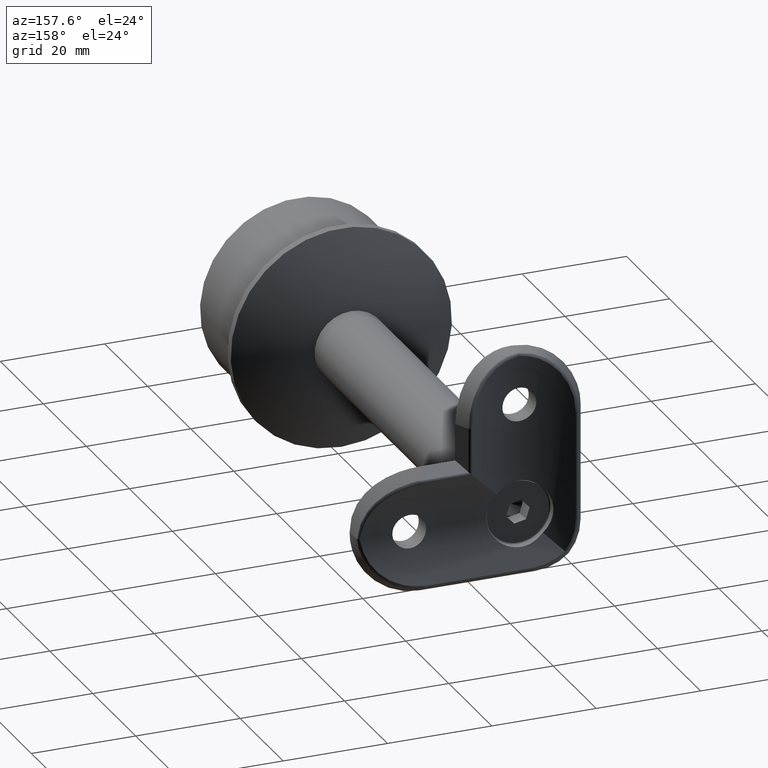
[diagram: clean part render]
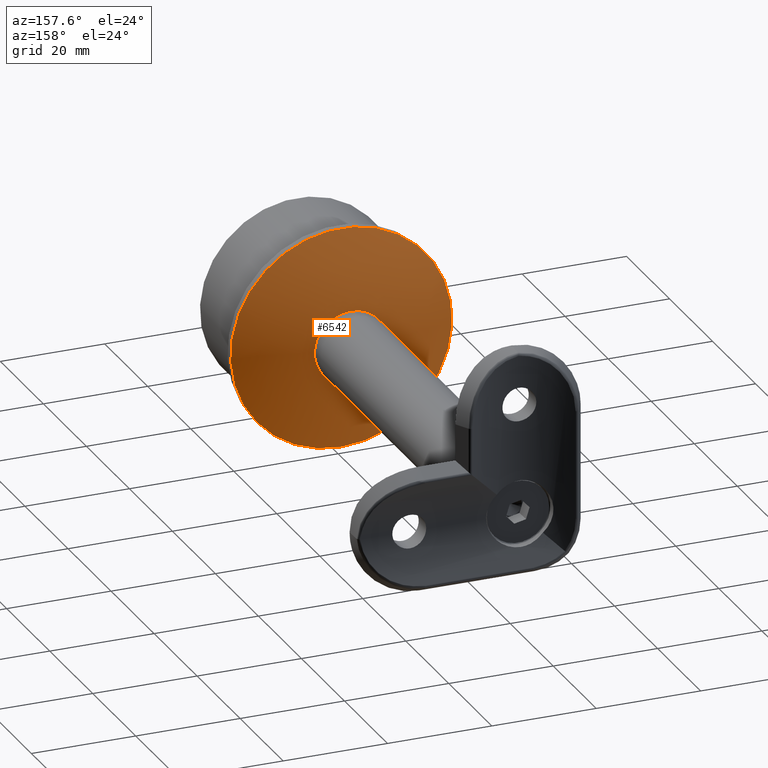
[diagram: same view with one face highlighted and labeled with its STEP entity id]
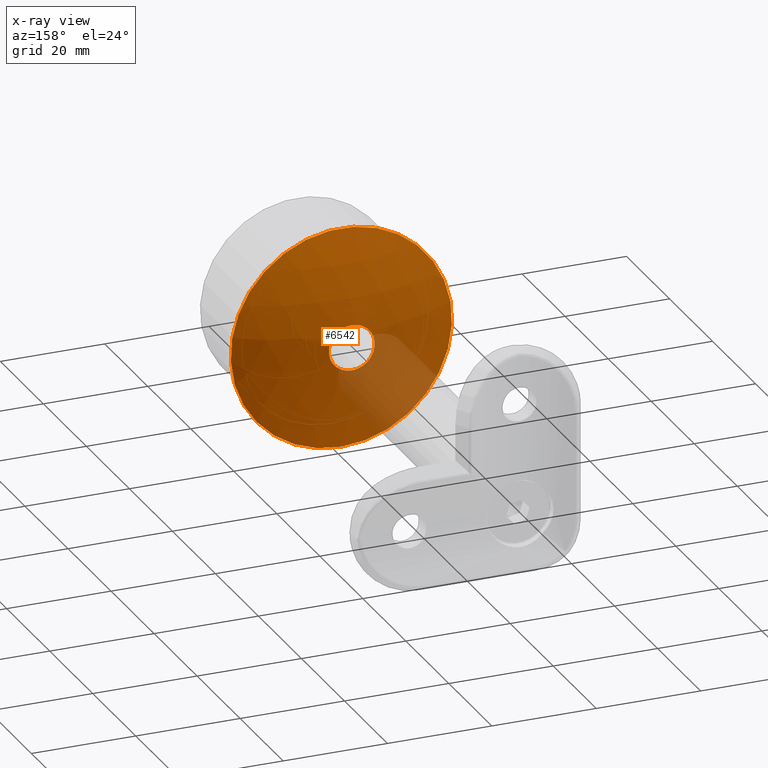
[diagram: x-ray of the same camera — body ghosted, the highlighted face saturated]
A machine part, auxiliary view. The second image highlights one B-rep face of the part: STEP entity #6542.
The next image is the same camera in x-ray: the body ghosted, the highlighted face saturated — about 15% of this face is hidden behind the body in this view.
In plain terms, the highlighted spherical surface has radius 47 mm.
Its self-contained STEP definition (entity closure, byte-faithful):
#669 = CARTESIAN_POINT ( 'NONE',  ( -7.703719777548943412E-31, 26.34777206188636356, -4.386234658904986539 ) ) ;
#1555 = DIRECTION ( 'NONE',  ( -0.000000000000000000, -1.000000000000000000, -0.000000000000000000 ) ) ;
#1572 = CARTESIAN_POINT ( 'NONE',  ( -7.703719777548943412E-31, -20.44710955477146186, 0.000000000000000000 ) ) ;
#2705 = FACE_OUTER_BOUND ( 'NONE', #12591, .T. ) ;
#3275 = DIRECTION ( 'NONE',  ( 0.000000000000000000, 0.000000000000000000, 1.000000000000000000 ) ) ;
#3743 = CARTESIAN_POINT ( 'NONE',  ( -7.703719777548943412E-31, 26.34777206188636356, 0.000000000000000000 ) ) ;
#3776 = CARTESIAN_POINT ( 'NONE',  ( 0.000000000000000000, 21.50000000000000355, -21.19999999999999574 ) ) ;
#3934 = ORIENTED_EDGE ( 'NONE', *, *, #15335, .F. ) ;
#4259 = CIRCLE ( 'NONE', #12535, 4.386234658904986539 ) ;
#6542 = ADVANCED_FACE ( 'NONE', ( #16260, #2705 ), #18763, .T. ) ;
#7071 = ORIENTED_EDGE ( 'NONE', *, *, #15447, .T. ) ;
#7120 = VERTEX_POINT ( 'NONE', #3776 ) ;
#7669 = CARTESIAN_POINT ( 'NONE',  ( 0.000000000000000000, 21.50000000000000355, 0.000000000000000000 ) ) ;
#11172 = CIRCLE ( 'NONE', #11491, 21.19999999999999574 ) ;
#11323 = VERTEX_POINT ( 'NONE', #669 ) ;
#11491 = AXIS2_PLACEMENT_3D ( 'NONE', #7669, #1555, #12570 ) ;
#11541 = DIRECTION ( 'NONE',  ( -0.000000000000000000, -1.000000000000000000, -0.000000000000000000 ) ) ;
#12535 = AXIS2_PLACEMENT_3D ( 'NONE', #3743, #11541, #13255 ) ;
#12570 = DIRECTION ( 'NONE',  ( 0.000000000000000000, 0.000000000000000000, -1.000000000000000000 ) ) ;
#12591 = EDGE_LOOP ( 'NONE', ( #3934 ) ) ;
#13255 = DIRECTION ( 'NONE',  ( 0.000000000000000000, 0.000000000000000000, -1.000000000000000000 ) ) ;
#15335 = EDGE_CURVE ( 'NONE', #7120, #7120, #11172, .T. ) ;
#15447 = EDGE_CURVE ( 'NONE', #11323, #11323, #4259, .T. ) ;
#15534 = EDGE_LOOP ( 'NONE', ( #7071 ) ) ;
#16260 = FACE_OUTER_BOUND ( 'NONE', #15534, .T. ) ;
#16308 = AXIS2_PLACEMENT_3D ( 'NONE', #1572, #3275, #18824 ) ;
#18763 = SPHERICAL_SURFACE ( 'NONE', #16308, 47.00000000000000000 ) ;
#18824 = DIRECTION ( 'NONE',  ( 1.000000000000000000, 0.000000000000000000, 0.000000000000000000 ) ) ;